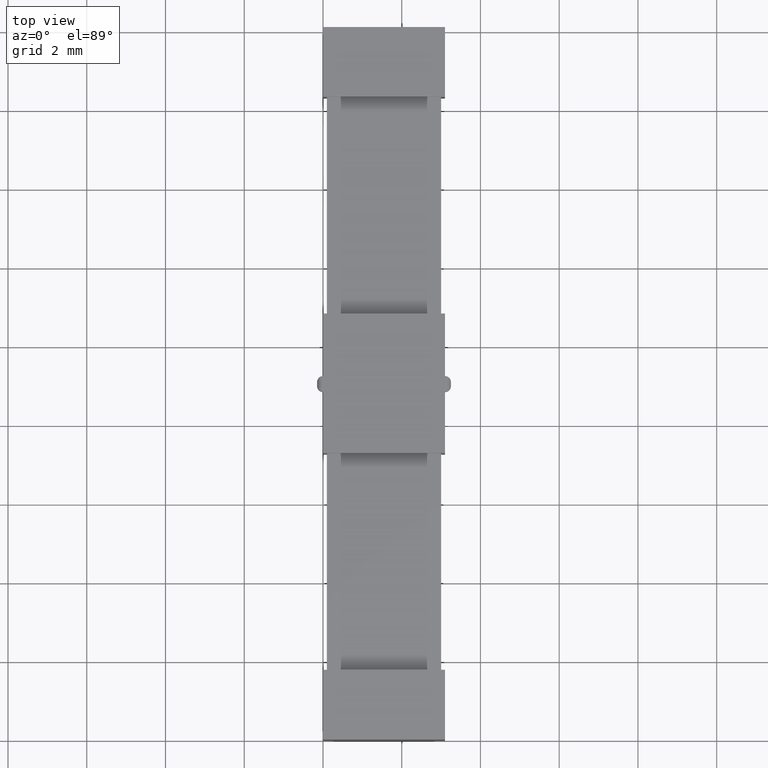
[diagram: clean part render]
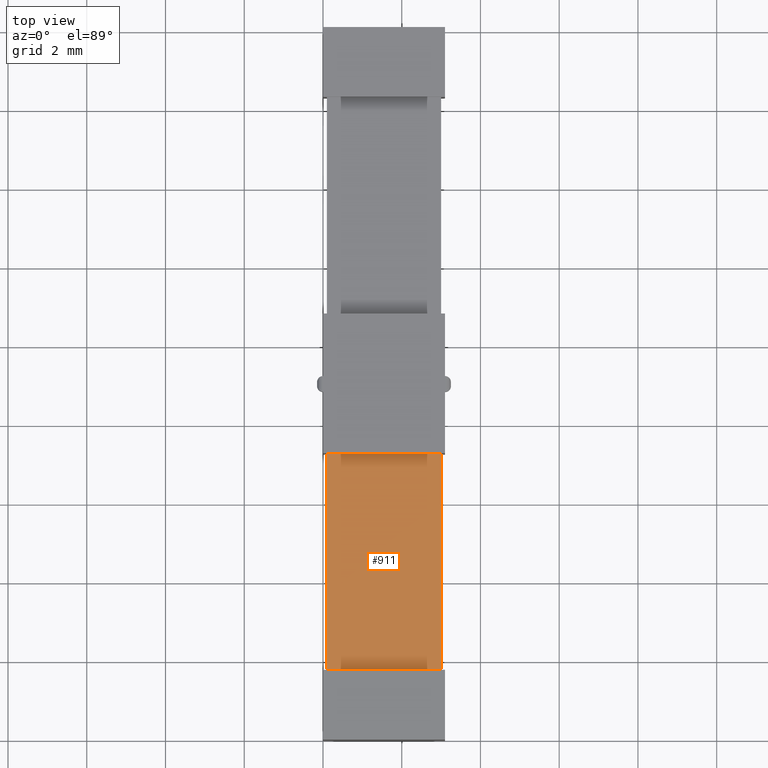
[diagram: same view with one face highlighted and labeled with its STEP entity id]
A machine part, top view. The second image highlights one B-rep face of the part: STEP entity #911.
In plain terms, the highlighted planar face has unit normal (-0, 0, 1).
Its self-contained STEP definition (entity closure, byte-faithful):
#374 = EDGE_CURVE ( 'NONE', #1510, #2626, #2244, .T. ) ;
#445 = LINE ( 'NONE', #513, #2923 ) ;
#513 = CARTESIAN_POINT ( 'NONE',  ( 1.999382857223951600E-015, 1.773799999999999800, 2.250000000000000000 ) ) ;
#527 = CARTESIAN_POINT ( 'NONE',  ( 2.999999999999999600, 1.773799999999999600, 2.249999999999999100 ) ) ;
#539 = DIRECTION ( 'NONE',  ( -0.0000000000000000000, -1.000000000000000000, -1.576333487184506900E-016 ) ) ;
#548 = ORIENTED_EDGE ( 'NONE', *, *, #1741, .T. ) ;
#659 = VERTEX_POINT ( 'NONE', #3052 ) ;
#777 = PLANE ( 'NONE',  #1961 ) ;
#910 = VECTOR ( 'NONE', #1706, 1000.000000000000000 ) ;
#911 = ADVANCED_FACE ( 'NONE', ( #1266 ), #777, .T. ) ;
#1008 = EDGE_CURVE ( 'NONE', #2018, #2626, #445, .T. ) ;
#1266 = FACE_OUTER_BOUND ( 'NONE', #1856, .T. ) ;
#1510 = VERTEX_POINT ( 'NONE', #1989 ) ;
#1530 = CARTESIAN_POINT ( 'NONE',  ( 0.0000000000000000000, 0.0000000000000000000, 2.250000000000000000 ) ) ;
#1560 = VECTOR ( 'NONE', #2463, 1000.000000000000000 ) ;
#1619 = LINE ( 'NONE', #2883, #2271 ) ;
#1656 = LINE ( 'NONE', #2702, #910 ) ;
#1706 = DIRECTION ( 'NONE',  ( -1.000000000000000000, -0.0000000000000000000, -0.0000000000000000000 ) ) ;
#1741 = EDGE_CURVE ( 'NONE', #659, #2018, #1619, .T. ) ;
#1856 = EDGE_LOOP ( 'NONE', ( #3338, #548, #2128, #2167 ) ) ;
#1961 = AXIS2_PLACEMENT_3D ( 'NONE', #1530, #2548, #2584 ) ;
#1989 = CARTESIAN_POINT ( 'NONE',  ( 2.999999999999999600, 7.276200000000002900, 2.250000000000000000 ) ) ;
#2018 = VERTEX_POINT ( 'NONE', #2997 ) ;
#2128 = ORIENTED_EDGE ( 'NONE', *, *, #1008, .T. ) ;
#2144 = EDGE_CURVE ( 'NONE', #1510, #659, #1656, .T. ) ;
#2167 = ORIENTED_EDGE ( 'NONE', *, *, #374, .F. ) ;
#2189 = CARTESIAN_POINT ( 'NONE',  ( 2.999999999999999600, 7.276200000000002900, 2.250000000000000000 ) ) ;
#2244 = LINE ( 'NONE', #2189, #1560 ) ;
#2271 = VECTOR ( 'NONE', #539, 1000.000000000000000 ) ;
#2333 = DIRECTION ( 'NONE',  ( 1.000000000000000000, 0.0000000000000000000, 0.0000000000000000000 ) ) ;
#2463 = DIRECTION ( 'NONE',  ( 0.0000000000000000000, -1.000000000000000000, -1.576333487184506900E-016 ) ) ;
#2548 = DIRECTION ( 'NONE',  ( -0.0000000000000000000, 0.0000000000000000000, 1.000000000000000000 ) ) ;
#2584 = DIRECTION ( 'NONE',  ( 1.000000000000000000, 0.0000000000000000000, 0.0000000000000000000 ) ) ;
#2626 = VERTEX_POINT ( 'NONE', #527 ) ;
#2702 = CARTESIAN_POINT ( 'NONE',  ( 1.325533202461112200E-015, 7.276200000000002900, 2.250000000000000000 ) ) ;
#2883 = CARTESIAN_POINT ( 'NONE',  ( 0.09999999999999957500, 7.276200000000002900, 2.250000000000000000 ) ) ;
#2923 = VECTOR ( 'NONE', #2333, 1000.000000000000000 ) ;
#2997 = CARTESIAN_POINT ( 'NONE',  ( 0.09999999999999957500, 1.773799999999999600, 2.249999999999999100 ) ) ;
#3052 = CARTESIAN_POINT ( 'NONE',  ( 0.09999999999999957500, 7.276200000000002900, 2.250000000000000000 ) ) ;
#3338 = ORIENTED_EDGE ( 'NONE', *, *, #2144, .T. ) ;